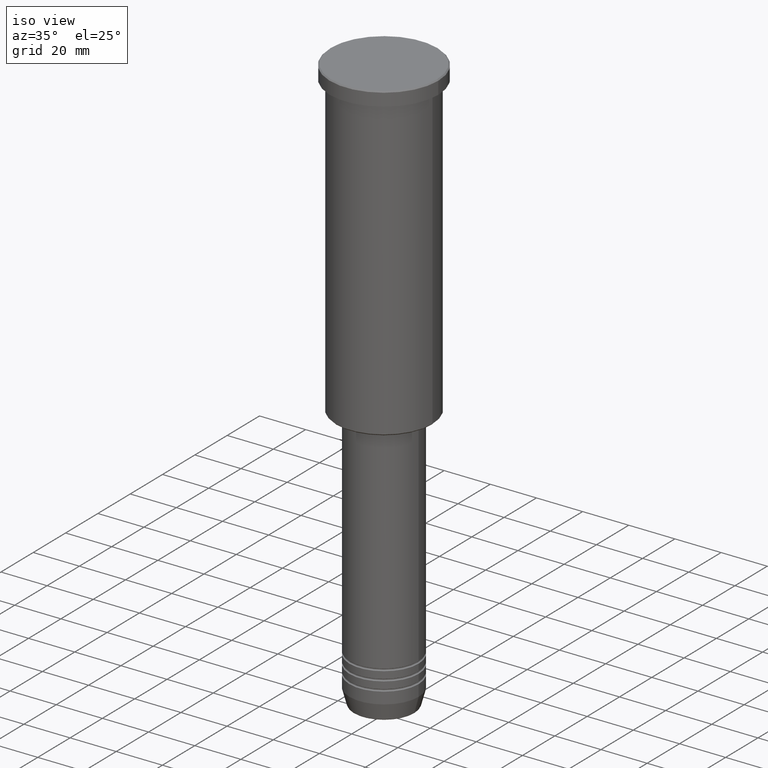
[diagram: clean part render]
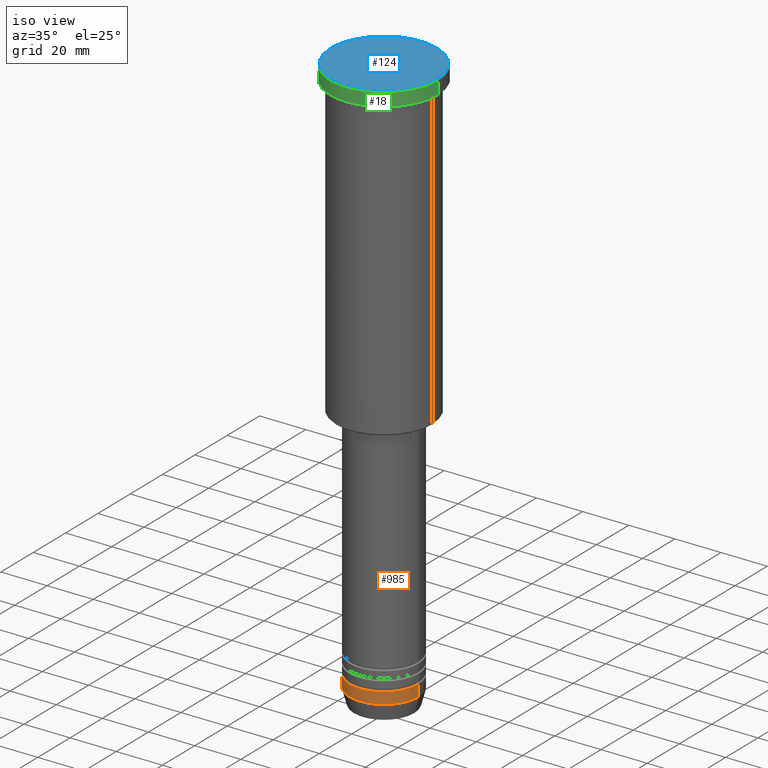
[diagram: same view with three faces highlighted in distinct colors, each labeled with its STEP entity id]
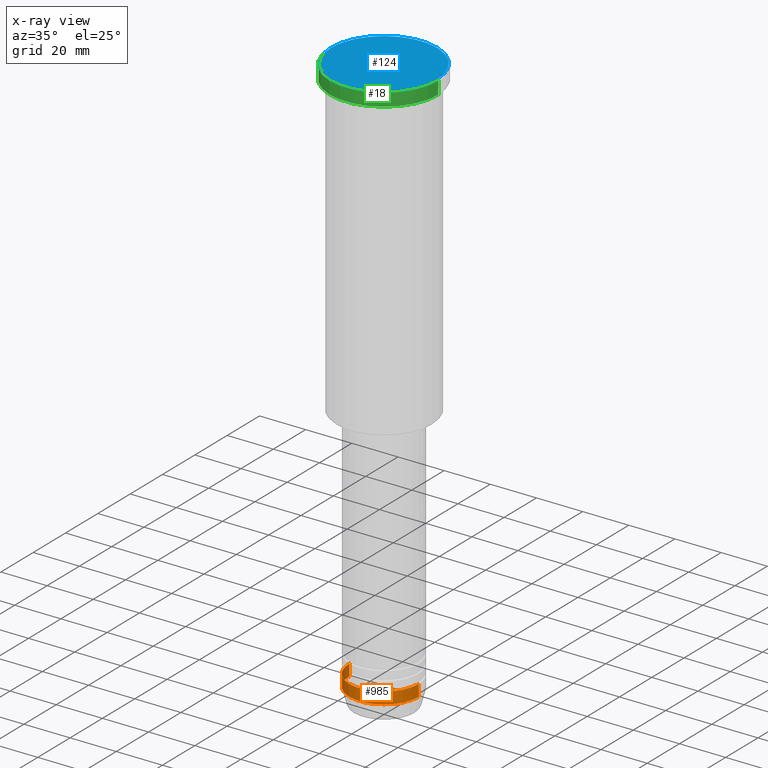
[diagram: x-ray of the same camera — body ghosted, the three highlighted faces saturated]
A machine part, iso view with three faces highlighted in distinct colors.
The next image is the same camera in x-ray (body ghosted, the three faces saturated) — at least one of them is partly hidden behind the body in this view.
Their STEP definitions:

[orange] entity #985 — the highlighted cylindrical surface (partial cylindrical patch) has radius 15 mm, axis along (-0, -0, 1).
#11 = CARTESIAN_POINT ( 'NONE',  ( 0.000000000000000000, 0.000000000000000000, -244.0000000000000000 ) ) ;
#50 = ORIENTED_EDGE ( 'NONE', *, *, #728, .T. ) ;
#62 = VERTEX_POINT ( 'NONE', #613 ) ;
#74 = EDGE_CURVE ( 'NONE', #197, #588, #1057, .T. ) ;
#126 = ORIENTED_EDGE ( 'NONE', *, *, #74, .T. ) ;
#142 = CARTESIAN_POINT ( 'NONE',  ( -15.00000000000000000, 1.836970198721029589E-15, 0.000000000000000000 ) ) ;
#197 = VERTEX_POINT ( 'NONE', #736 ) ;
#222 = AXIS2_PLACEMENT_3D ( 'NONE', #1024, #413, #970 ) ;
#234 = CARTESIAN_POINT ( 'NONE',  ( 15.00000000000000000, 0.000000000000000000, 0.000000000000000000 ) ) ;
#365 = EDGE_CURVE ( 'NONE', #475, #588, #819, .T. ) ;
#411 = EDGE_LOOP ( 'NONE', ( #726, #50, #126, #872 ) ) ;
#413 = DIRECTION ( 'NONE',  ( -0.000000000000000000, -0.000000000000000000, 1.000000000000000000 ) ) ;
#475 = VERTEX_POINT ( 'NONE', #603 ) ;
#526 = DIRECTION ( 'NONE',  ( 1.000000000000000000, 0.000000000000000000, 0.000000000000000000 ) ) ;
#556 = AXIS2_PLACEMENT_3D ( 'NONE', #11, #1096, #743 ) ;
#588 = VERTEX_POINT ( 'NONE', #890 ) ;
#603 = CARTESIAN_POINT ( 'NONE',  ( -15.00000000000000000, 1.836970198721029589E-15, -239.0000000000000284 ) ) ;
#608 = CIRCLE ( 'NONE', #556, 15.00000000000000000 ) ;
#613 = CARTESIAN_POINT ( 'NONE',  ( -15.00000000000000000, 1.836970198721029589E-15, -244.0000000000000000 ) ) ;
#644 = VECTOR ( 'NONE', #1163, 1000.000000000000000 ) ;
#701 = DIRECTION ( 'NONE',  ( -0.000000000000000000, -0.000000000000000000, 1.000000000000000000 ) ) ;
#710 = CARTESIAN_POINT ( 'NONE',  ( 0.000000000000000000, 0.000000000000000000, 0.000000000000000000 ) ) ;
#726 = ORIENTED_EDGE ( 'NONE', *, *, #853, .F. ) ;
#728 = EDGE_CURVE ( 'NONE', #62, #197, #608, .T. ) ;
#736 = CARTESIAN_POINT ( 'NONE',  ( 15.00000000000000000, 0.000000000000000000, -244.0000000000000000 ) ) ;
#743 = DIRECTION ( 'NONE',  ( 1.000000000000000000, 0.000000000000000000, 0.000000000000000000 ) ) ;
#760 = LINE ( 'NONE', #142, #1177 ) ;
#819 = CIRCLE ( 'NONE', #222, 15.00000000000000000 ) ;
#847 = AXIS2_PLACEMENT_3D ( 'NONE', #710, #701, #526 ) ;
#853 = EDGE_CURVE ( 'NONE', #62, #475, #760, .T. ) ;
#858 = DIRECTION ( 'NONE',  ( -0.000000000000000000, -0.000000000000000000, 1.000000000000000000 ) ) ;
#872 = ORIENTED_EDGE ( 'NONE', *, *, #365, .F. ) ;
#890 = CARTESIAN_POINT ( 'NONE',  ( 15.00000000000000000, 0.000000000000000000, -239.0000000000000284 ) ) ;
#899 = CYLINDRICAL_SURFACE ( 'NONE', #847, 15.00000000000000000 ) ;
#970 = DIRECTION ( 'NONE',  ( 1.000000000000000000, 0.000000000000000000, 0.000000000000000000 ) ) ;
#985 = ADVANCED_FACE ( 'NONE', ( #1153 ), #899, .T. ) ;
#1024 = CARTESIAN_POINT ( 'NONE',  ( 0.000000000000000000, 0.000000000000000000, -239.0000000000000284 ) ) ;
#1057 = LINE ( 'NONE', #234, #644 ) ;
#1096 = DIRECTION ( 'NONE',  ( -0.000000000000000000, -0.000000000000000000, 1.000000000000000000 ) ) ;
#1153 = FACE_OUTER_BOUND ( 'NONE', #411, .T. ) ;
#1163 = DIRECTION ( 'NONE',  ( -0.000000000000000000, -0.000000000000000000, 1.000000000000000000 ) ) ;
#1177 = VECTOR ( 'NONE', #858, 1000.000000000000000 ) ;

[blue] entity #124 — the highlighted planar face has unit normal (0, -0, 1).
#61 = FACE_OUTER_BOUND ( 'NONE', #1109, .T. ) ;
#97 = DIRECTION ( 'NONE',  ( -0.000000000000000000, -0.000000000000000000, 1.000000000000000000 ) ) ;
#109 = AXIS2_PLACEMENT_3D ( 'NONE', #967, #971, #432 ) ;
#124 = ADVANCED_FACE ( 'NONE', ( #61 ), #329, .T. ) ;
#194 = CARTESIAN_POINT ( 'NONE',  ( 0.000000000000000000, 0.000000000000000000, 0.000000000000000000 ) ) ;
#199 = EDGE_CURVE ( 'NONE', #769, #1011, #685, .T. ) ;
#257 = AXIS2_PLACEMENT_3D ( 'NONE', #280, #1073, #533 ) ;
#280 = CARTESIAN_POINT ( 'NONE',  ( 0.000000000000000000, 0.000000000000000000, 0.000000000000000000 ) ) ;
#329 = PLANE ( 'NONE',  #109 ) ;
#432 = DIRECTION ( 'NONE',  ( 1.000000000000000000, 0.000000000000000000, 0.000000000000000000 ) ) ;
#486 = DIRECTION ( 'NONE',  ( 1.000000000000000000, 0.000000000000000000, 0.000000000000000000 ) ) ;
#533 = DIRECTION ( 'NONE',  ( 1.000000000000000000, 0.000000000000000000, 0.000000000000000000 ) ) ;
#648 = EDGE_CURVE ( 'NONE', #1011, #769, #1122, .T. ) ;
#685 = CIRCLE ( 'NONE', #257, 23.00000000000005329 ) ;
#769 = VERTEX_POINT ( 'NONE', #775 ) ;
#775 = CARTESIAN_POINT ( 'NONE',  ( -23.00000000000005329, 0.000000000000000000, 0.000000000000000000 ) ) ;
#784 = AXIS2_PLACEMENT_3D ( 'NONE', #194, #97, #486 ) ;
#791 = ORIENTED_EDGE ( 'NONE', *, *, #648, .T. ) ;
#798 = CARTESIAN_POINT ( 'NONE',  ( 23.00000000000005329, 2.847303808017599689E-15, 0.000000000000000000 ) ) ;
#967 = CARTESIAN_POINT ( 'NONE',  ( 0.000000000000000000, 0.000000000000000000, 0.000000000000000000 ) ) ;
#971 = DIRECTION ( 'NONE',  ( 0.000000000000000000, -0.000000000000000000, 1.000000000000000000 ) ) ;
#978 = ORIENTED_EDGE ( 'NONE', *, *, #199, .T. ) ;
#1011 = VERTEX_POINT ( 'NONE', #798 ) ;
#1073 = DIRECTION ( 'NONE',  ( -0.000000000000000000, -0.000000000000000000, 1.000000000000000000 ) ) ;
#1109 = EDGE_LOOP ( 'NONE', ( #978, #791 ) ) ;
#1122 = CIRCLE ( 'NONE', #784, 23.00000000000005329 ) ;

[green] entity #18 — the highlighted cylindrical surface (partial cylindrical patch) has radius 23.5 mm, axis along (-0, -0, 1).
#7 = EDGE_CURVE ( 'NONE', #542, #898, #404, .T. ) ;
#18 = ADVANCED_FACE ( 'NONE', ( #287 ), #307, .T. ) ;
#27 = CARTESIAN_POINT ( 'NONE',  ( 0.000000000000000000, 0.000000000000000000, 0.000000000000000000 ) ) ;
#34 = DIRECTION ( 'NONE',  ( -0.000000000000000000, -0.000000000000000000, 1.000000000000000000 ) ) ;
#55 = CIRCLE ( 'NONE', #1010, 23.50000000000000000 ) ;
#56 = LINE ( 'NONE', #528, #572 ) ;
#98 = EDGE_CURVE ( 'NONE', #1090, #568, #56, .T. ) ;
#100 = ORIENTED_EDGE ( 'NONE', *, *, #670, .T. ) ;
#134 = CIRCLE ( 'NONE', #189, 23.50000000000000000 ) ;
#189 = AXIS2_PLACEMENT_3D ( 'NONE', #357, #203, #547 ) ;
#200 = DIRECTION ( 'NONE',  ( 1.000000000000000000, 0.000000000000000000, 0.000000000000000000 ) ) ;
#203 = DIRECTION ( 'NONE',  ( -0.000000000000000000, -0.000000000000000000, 1.000000000000000000 ) ) ;
#218 = CARTESIAN_POINT ( 'NONE',  ( -23.50000000000000000, 2.877919977996280320E-15, -0.4999999999999726885 ) ) ;
#278 = AXIS2_PLACEMENT_3D ( 'NONE', #27, #488, #200 ) ;
#287 = FACE_OUTER_BOUND ( 'NONE', #577, .T. ) ;
#307 = CYLINDRICAL_SURFACE ( 'NONE', #278, 23.50000000000000000 ) ;
#339 = CARTESIAN_POINT ( 'NONE',  ( 23.50000000000000000, 0.000000000000000000, -0.4999999999999726885 ) ) ;
#357 = CARTESIAN_POINT ( 'NONE',  ( 0.000000000000000000, 0.000000000000000000, -5.999999999999993783 ) ) ;
#387 = ORIENTED_EDGE ( 'NONE', *, *, #98, .T. ) ;
#404 = LINE ( 'NONE', #946, #840 ) ;
#488 = DIRECTION ( 'NONE',  ( -0.000000000000000000, -0.000000000000000000, 1.000000000000000000 ) ) ;
#528 = CARTESIAN_POINT ( 'NONE',  ( 23.50000000000000000, 0.000000000000000000, 0.000000000000000000 ) ) ;
#542 = VERTEX_POINT ( 'NONE', #697 ) ;
#547 = DIRECTION ( 'NONE',  ( 1.000000000000000000, 0.000000000000000000, 0.000000000000000000 ) ) ;
#568 = VERTEX_POINT ( 'NONE', #339 ) ;
#572 = VECTOR ( 'NONE', #1069, 1000.000000000000000 ) ;
#577 = EDGE_LOOP ( 'NONE', ( #682, #100, #387, #664 ) ) ;
#664 = ORIENTED_EDGE ( 'NONE', *, *, #1106, .T. ) ;
#670 = EDGE_CURVE ( 'NONE', #542, #1090, #134, .T. ) ;
#682 = ORIENTED_EDGE ( 'NONE', *, *, #7, .F. ) ;
#697 = CARTESIAN_POINT ( 'NONE',  ( -23.50000000000000000, 2.877919977996280320E-15, -5.999999999999993783 ) ) ;
#724 = DIRECTION ( 'NONE',  ( 0.000000000000000000, 0.000000000000000000, -1.000000000000000000 ) ) ;
#840 = VECTOR ( 'NONE', #34, 1000.000000000000000 ) ;
#898 = VERTEX_POINT ( 'NONE', #218 ) ;
#926 = CARTESIAN_POINT ( 'NONE',  ( 23.50000000000000000, 0.000000000000000000, -5.999999999999993783 ) ) ;
#933 = DIRECTION ( 'NONE',  ( 1.000000000000000000, 0.000000000000000000, 0.000000000000000000 ) ) ;
#946 = CARTESIAN_POINT ( 'NONE',  ( -23.50000000000000000, 2.877919977996280320E-15, 0.000000000000000000 ) ) ;
#1010 = AXIS2_PLACEMENT_3D ( 'NONE', #1089, #724, #933 ) ;
#1069 = DIRECTION ( 'NONE',  ( -0.000000000000000000, -0.000000000000000000, 1.000000000000000000 ) ) ;
#1089 = CARTESIAN_POINT ( 'NONE',  ( 0.000000000000000000, 0.000000000000000000, -0.4999999999999726885 ) ) ;
#1090 = VERTEX_POINT ( 'NONE', #926 ) ;
#1106 = EDGE_CURVE ( 'NONE', #568, #898, #55, .T. ) ;